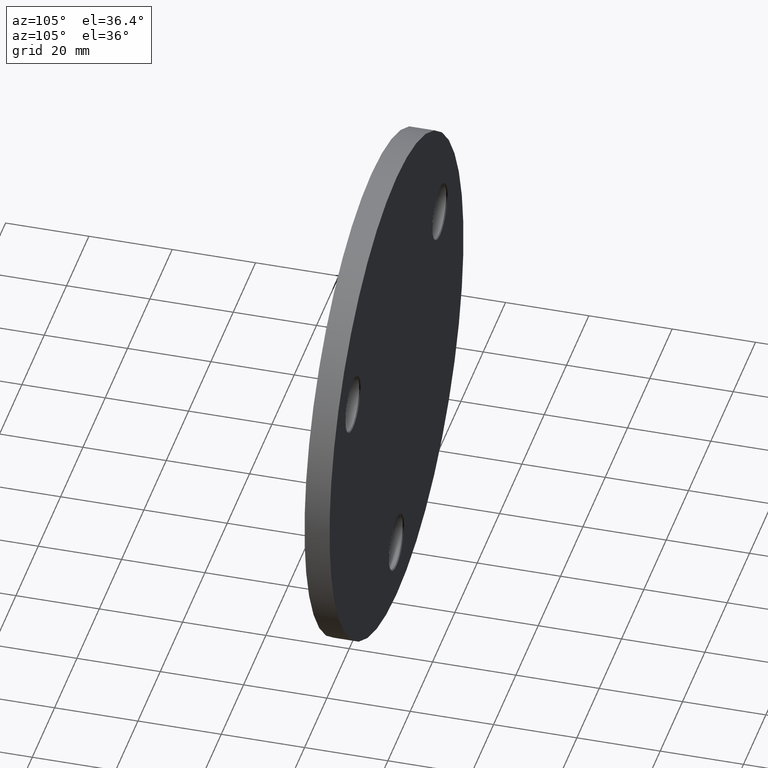
[diagram: clean part render]
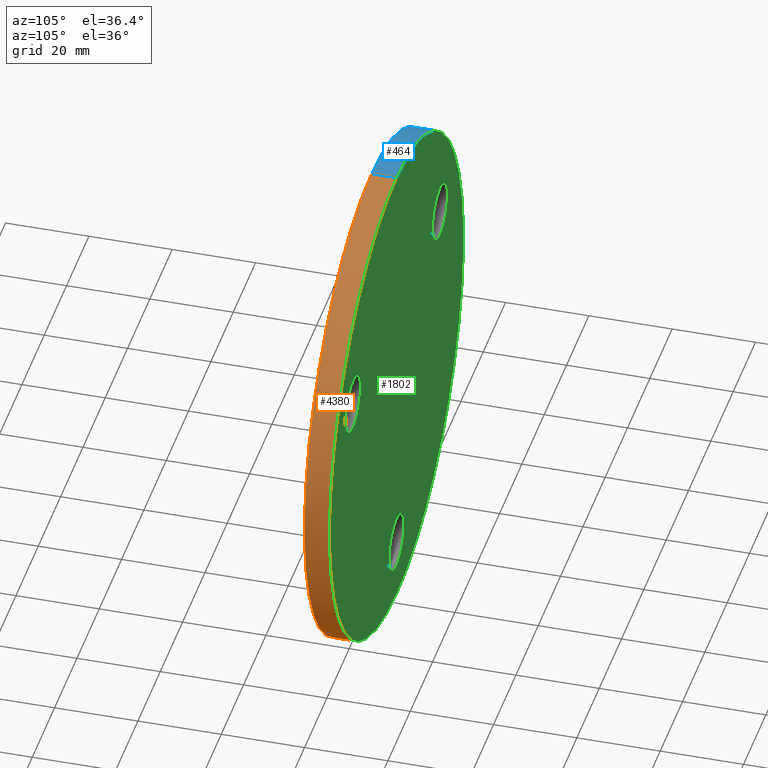
[diagram: same view with three faces highlighted in distinct colors, each labeled with its STEP entity id]
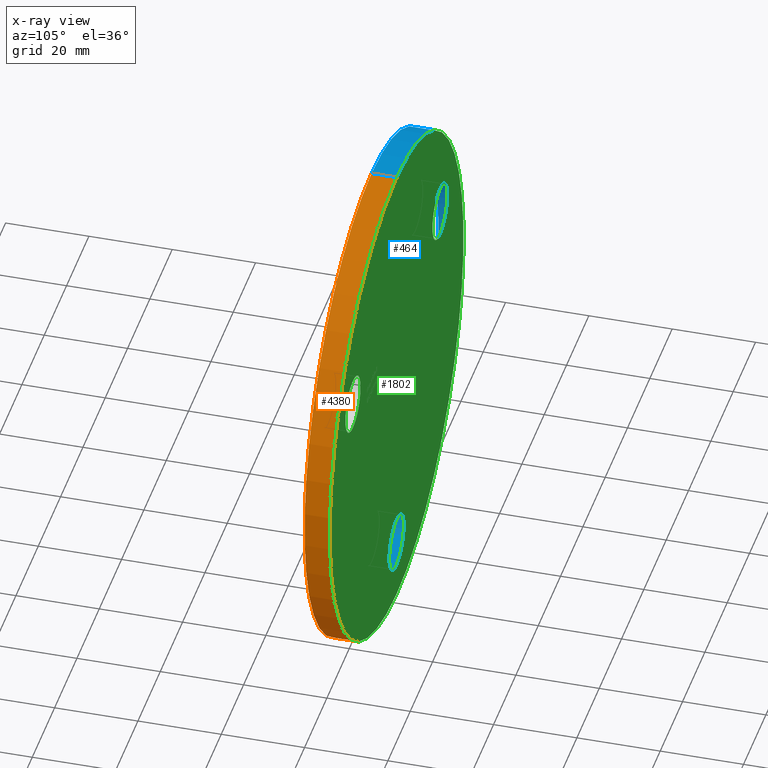
[diagram: x-ray of the same camera — body ghosted, the three highlighted faces saturated]
A machine part, auxiliary view with three faces highlighted in distinct colors.
The next image is the same camera in x-ray (body ghosted, the three faces saturated) — at least one of them is partly hidden behind the body in this view.
Their STEP definitions:

[orange] entity #4380 — the highlighted cylindrical surface (partial cylindrical patch) has radius 60 mm, axis along (-0, -1, -0).
#524 = ORIENTED_EDGE ( 'NONE', *, *, #2903, .F. ) ;
#1563 = EDGE_CURVE ( 'NONE', #5418, #5318, #6334, .T. ) ;
#2497 = CARTESIAN_POINT ( 'NONE',  ( 7.347880794884118356E-15, 6.000000000000000000, 60.00000000000000000 ) ) ;
#2500 = DIRECTION ( 'NONE',  ( 0.000000000000000000, 1.000000000000000000, 0.000000000000000000 ) ) ;
#2747 = AXIS2_PLACEMENT_3D ( 'NONE', #11037, #2500, #6249 ) ;
#2903 = EDGE_CURVE ( 'NONE', #10731, #3794, #4355, .T. ) ;
#3794 = VERTEX_POINT ( 'NONE', #11769 ) ;
#3869 = CYLINDRICAL_SURFACE ( 'NONE', #10112, 60.00000000000000000 ) ;
#4352 = EDGE_LOOP ( 'NONE', ( #7799, #9446, #7222, #524 ) ) ;
#4355 = LINE ( 'NONE', #10307, #5378 ) ;
#4378 = DIRECTION ( 'NONE',  ( -0.000000000000000000, -1.000000000000000000, -0.000000000000000000 ) ) ;
#4380 = ADVANCED_FACE ( 'NONE', ( #11148 ), #3869, .T. ) ;
#5318 = VERTEX_POINT ( 'NONE', #11219 ) ;
#5378 = VECTOR ( 'NONE', #7529, 1000.000000000000000 ) ;
#5418 = VERTEX_POINT ( 'NONE', #6687 ) ;
#5913 = EDGE_CURVE ( 'NONE', #5318, #3794, #6353, .T. ) ;
#6249 = DIRECTION ( 'NONE',  ( 0.000000000000000000, 0.000000000000000000, 1.000000000000000000 ) ) ;
#6315 = DIRECTION ( 'NONE',  ( -0.000000000000000000, -1.000000000000000000, -0.000000000000000000 ) ) ;
#6334 = LINE ( 'NONE', #2497, #8713 ) ;
#6353 = CIRCLE ( 'NONE', #12162, 60.00000000000000000 ) ;
#6687 = CARTESIAN_POINT ( 'NONE',  ( 7.347880794884118356E-15, 6.000000000000000000, 60.00000000000000000 ) ) ;
#7155 = EDGE_CURVE ( 'NONE', #5418, #10731, #10204, .T. ) ;
#7222 = ORIENTED_EDGE ( 'NONE', *, *, #5913, .T. ) ;
#7378 = DIRECTION ( 'NONE',  ( 0.000000000000000000, 0.000000000000000000, 1.000000000000000000 ) ) ;
#7529 = DIRECTION ( 'NONE',  ( -0.000000000000000000, -1.000000000000000000, -0.000000000000000000 ) ) ;
#7799 = ORIENTED_EDGE ( 'NONE', *, *, #7155, .F. ) ;
#8422 = CARTESIAN_POINT ( 'NONE',  ( 0.000000000000000000, 6.000000000000000000, -60.00000000000000000 ) ) ;
#8713 = VECTOR ( 'NONE', #4378, 1000.000000000000000 ) ;
#9065 = CARTESIAN_POINT ( 'NONE',  ( 0.000000000000000000, 6.000000000000000000, 0.000000000000000000 ) ) ;
#9110 = DIRECTION ( 'NONE',  ( 0.000000000000000000, 0.000000000000000000, -1.000000000000000000 ) ) ;
#9446 = ORIENTED_EDGE ( 'NONE', *, *, #1563, .T. ) ;
#10112 = AXIS2_PLACEMENT_3D ( 'NONE', #9065, #6315, #9110 ) ;
#10204 = CIRCLE ( 'NONE', #2747, 60.00000000000000000 ) ;
#10241 = CARTESIAN_POINT ( 'NONE',  ( 0.000000000000000000, 0.000000000000000000, 0.000000000000000000 ) ) ;
#10307 = CARTESIAN_POINT ( 'NONE',  ( 0.000000000000000000, 6.000000000000000000, -60.00000000000000000 ) ) ;
#10731 = VERTEX_POINT ( 'NONE', #8422 ) ;
#11037 = CARTESIAN_POINT ( 'NONE',  ( 0.000000000000000000, 6.000000000000000000, 0.000000000000000000 ) ) ;
#11148 = FACE_OUTER_BOUND ( 'NONE', #4352, .T. ) ;
#11219 = CARTESIAN_POINT ( 'NONE',  ( 7.347880794884118356E-15, 0.000000000000000000, 60.00000000000000000 ) ) ;
#11769 = CARTESIAN_POINT ( 'NONE',  ( 0.000000000000000000, 0.000000000000000000, -60.00000000000000000 ) ) ;
#12045 = DIRECTION ( 'NONE',  ( 0.000000000000000000, 1.000000000000000000, 0.000000000000000000 ) ) ;
#12162 = AXIS2_PLACEMENT_3D ( 'NONE', #10241, #12045, #7378 ) ;

[blue] entity #464 — the highlighted cylindrical surface (partial cylindrical patch) has radius 60 mm, axis along (-0, -1, -0).
#464 = ADVANCED_FACE ( 'NONE', ( #10974 ), #8730, .T. ) ;
#1563 = EDGE_CURVE ( 'NONE', #5418, #5318, #6334, .T. ) ;
#2243 = DIRECTION ( 'NONE',  ( 0.000000000000000000, 1.000000000000000000, 0.000000000000000000 ) ) ;
#2497 = CARTESIAN_POINT ( 'NONE',  ( 7.347880794884118356E-15, 6.000000000000000000, 60.00000000000000000 ) ) ;
#2903 = EDGE_CURVE ( 'NONE', #10731, #3794, #4355, .T. ) ;
#3196 = AXIS2_PLACEMENT_3D ( 'NONE', #9480, #4617, #7819 ) ;
#3582 = DIRECTION ( 'NONE',  ( 0.000000000000000000, 1.000000000000000000, 0.000000000000000000 ) ) ;
#3794 = VERTEX_POINT ( 'NONE', #11769 ) ;
#4245 = CARTESIAN_POINT ( 'NONE',  ( 0.000000000000000000, 6.000000000000000000, 0.000000000000000000 ) ) ;
#4355 = LINE ( 'NONE', #10307, #5378 ) ;
#4378 = DIRECTION ( 'NONE',  ( -0.000000000000000000, -1.000000000000000000, -0.000000000000000000 ) ) ;
#4617 = DIRECTION ( 'NONE',  ( -0.000000000000000000, -1.000000000000000000, -0.000000000000000000 ) ) ;
#4724 = AXIS2_PLACEMENT_3D ( 'NONE', #4245, #2243, #7987 ) ;
#5116 = AXIS2_PLACEMENT_3D ( 'NONE', #6511, #3582, #5431 ) ;
#5318 = VERTEX_POINT ( 'NONE', #11219 ) ;
#5378 = VECTOR ( 'NONE', #7529, 1000.000000000000000 ) ;
#5418 = VERTEX_POINT ( 'NONE', #6687 ) ;
#5431 = DIRECTION ( 'NONE',  ( 0.000000000000000000, 0.000000000000000000, 1.000000000000000000 ) ) ;
#6334 = LINE ( 'NONE', #2497, #8713 ) ;
#6511 = CARTESIAN_POINT ( 'NONE',  ( 0.000000000000000000, 0.000000000000000000, 0.000000000000000000 ) ) ;
#6687 = CARTESIAN_POINT ( 'NONE',  ( 7.347880794884118356E-15, 6.000000000000000000, 60.00000000000000000 ) ) ;
#6721 = ORIENTED_EDGE ( 'NONE', *, *, #1563, .F. ) ;
#7338 = CIRCLE ( 'NONE', #5116, 60.00000000000000000 ) ;
#7480 = CIRCLE ( 'NONE', #4724, 60.00000000000000000 ) ;
#7529 = DIRECTION ( 'NONE',  ( -0.000000000000000000, -1.000000000000000000, -0.000000000000000000 ) ) ;
#7819 = DIRECTION ( 'NONE',  ( 0.000000000000000000, 0.000000000000000000, -1.000000000000000000 ) ) ;
#7987 = DIRECTION ( 'NONE',  ( 0.000000000000000000, 0.000000000000000000, 1.000000000000000000 ) ) ;
#8266 = ORIENTED_EDGE ( 'NONE', *, *, #10284, .T. ) ;
#8422 = CARTESIAN_POINT ( 'NONE',  ( 0.000000000000000000, 6.000000000000000000, -60.00000000000000000 ) ) ;
#8713 = VECTOR ( 'NONE', #4378, 1000.000000000000000 ) ;
#8730 = CYLINDRICAL_SURFACE ( 'NONE', #3196, 60.00000000000000000 ) ;
#8949 = ORIENTED_EDGE ( 'NONE', *, *, #2903, .T. ) ;
#9480 = CARTESIAN_POINT ( 'NONE',  ( 0.000000000000000000, 6.000000000000000000, 0.000000000000000000 ) ) ;
#9854 = ORIENTED_EDGE ( 'NONE', *, *, #10061, .F. ) ;
#10061 = EDGE_CURVE ( 'NONE', #10731, #5418, #7480, .T. ) ;
#10284 = EDGE_CURVE ( 'NONE', #3794, #5318, #7338, .T. ) ;
#10307 = CARTESIAN_POINT ( 'NONE',  ( 0.000000000000000000, 6.000000000000000000, -60.00000000000000000 ) ) ;
#10731 = VERTEX_POINT ( 'NONE', #8422 ) ;
#10822 = EDGE_LOOP ( 'NONE', ( #6721, #9854, #8949, #8266 ) ) ;
#10974 = FACE_OUTER_BOUND ( 'NONE', #10822, .T. ) ;
#11219 = CARTESIAN_POINT ( 'NONE',  ( 7.347880794884118356E-15, 0.000000000000000000, 60.00000000000000000 ) ) ;
#11769 = CARTESIAN_POINT ( 'NONE',  ( 0.000000000000000000, 0.000000000000000000, -60.00000000000000000 ) ) ;

[green] entity #1802 — the highlighted planar face has unit normal (0, 1, 0).
#221 = EDGE_LOOP ( 'NONE', ( #7449, #2288 ) ) ;
#784 = ORIENTED_EDGE ( 'NONE', *, *, #9435, .T. ) ;
#1019 = ORIENTED_EDGE ( 'NONE', *, *, #3875, .T. ) ;
#1084 = ORIENTED_EDGE ( 'NONE', *, *, #7919, .T. ) ;
#1209 = DIRECTION ( 'NONE',  ( -0.000000000000000000, -1.000000000000000000, -0.000000000000000000 ) ) ;
#1602 = VERTEX_POINT ( 'NONE', #9197 ) ;
#1653 = CIRCLE ( 'NONE', #9636, 6.750000000000037303 ) ;
#1658 = CARTESIAN_POINT ( 'NONE',  ( 38.97114317029975439, 6.000000000000000000, 15.74999999999995914 ) ) ;
#1738 = DIRECTION ( 'NONE',  ( 0.000000000000000000, 0.000000000000000000, 1.000000000000000000 ) ) ;
#1802 = ADVANCED_FACE ( 'NONE', ( #5434, #11382, #3820, #2941 ), #1931, .T. ) ;
#1884 = CIRCLE ( 'NONE', #4559, 6.750000000000033751 ) ;
#1931 = PLANE ( 'NONE',  #6833 ) ;
#2132 = EDGE_CURVE ( 'NONE', #5989, #10085, #8560, .T. ) ;
#2243 = DIRECTION ( 'NONE',  ( 0.000000000000000000, 1.000000000000000000, 0.000000000000000000 ) ) ;
#2288 = ORIENTED_EDGE ( 'NONE', *, *, #6100, .T. ) ;
#2400 = CARTESIAN_POINT ( 'NONE',  ( 38.97114317029975439, 6.000000000000000000, 29.25000000000003197 ) ) ;
#2410 = AXIS2_PLACEMENT_3D ( 'NONE', #4730, #3939, #12268 ) ;
#2500 = DIRECTION ( 'NONE',  ( 0.000000000000000000, 1.000000000000000000, 0.000000000000000000 ) ) ;
#2747 = AXIS2_PLACEMENT_3D ( 'NONE', #11037, #2500, #6249 ) ;
#2941 = FACE_OUTER_BOUND ( 'NONE', #6604, .T. ) ;
#3359 = ORIENTED_EDGE ( 'NONE', *, *, #10061, .T. ) ;
#3498 = CARTESIAN_POINT ( 'NONE',  ( -38.97114317029973307, 6.000000000000000000, 22.50000000000002132 ) ) ;
#3580 = EDGE_LOOP ( 'NONE', ( #8950, #1019 ) ) ;
#3820 = FACE_BOUND ( 'NONE', #221, .T. ) ;
#3875 = EDGE_CURVE ( 'NONE', #10578, #6777, #9971, .T. ) ;
#3939 = DIRECTION ( 'NONE',  ( -0.000000000000000000, -1.000000000000000000, -0.000000000000000000 ) ) ;
#3997 = AXIS2_PLACEMENT_3D ( 'NONE', #10575, #1209, #5966 ) ;
#4134 = DIRECTION ( 'NONE',  ( 0.000000000000000000, 0.000000000000000000, 1.000000000000000000 ) ) ;
#4245 = CARTESIAN_POINT ( 'NONE',  ( 0.000000000000000000, 6.000000000000000000, 0.000000000000000000 ) ) ;
#4435 = DIRECTION ( 'NONE',  ( -0.000000000000000000, -1.000000000000000000, -0.000000000000000000 ) ) ;
#4559 = AXIS2_PLACEMENT_3D ( 'NONE', #3498, #11093, #9217 ) ;
#4724 = AXIS2_PLACEMENT_3D ( 'NONE', #4245, #2243, #7987 ) ;
#4730 = CARTESIAN_POINT ( 'NONE',  ( 0.000000000000000000, 6.000000000000000000, -45.00000000000000000 ) ) ;
#4952 = DIRECTION ( 'NONE',  ( -0.000000000000000000, -1.000000000000000000, -0.000000000000000000 ) ) ;
#5001 = VERTEX_POINT ( 'NONE', #11343 ) ;
#5418 = VERTEX_POINT ( 'NONE', #6687 ) ;
#5434 = FACE_BOUND ( 'NONE', #3580, .T. ) ;
#5862 = EDGE_CURVE ( 'NONE', #6777, #10578, #1653, .T. ) ;
#5966 = DIRECTION ( 'NONE',  ( 0.000000000000000000, 0.000000000000000000, 1.000000000000000000 ) ) ;
#5989 = VERTEX_POINT ( 'NONE', #8212 ) ;
#6100 = EDGE_CURVE ( 'NONE', #10085, #5989, #6787, .T. ) ;
#6249 = DIRECTION ( 'NONE',  ( 0.000000000000000000, 0.000000000000000000, 1.000000000000000000 ) ) ;
#6406 = ORIENTED_EDGE ( 'NONE', *, *, #7155, .T. ) ;
#6604 = EDGE_LOOP ( 'NONE', ( #3359, #6406 ) ) ;
#6687 = CARTESIAN_POINT ( 'NONE',  ( 7.347880794884118356E-15, 6.000000000000000000, 60.00000000000000000 ) ) ;
#6777 = VERTEX_POINT ( 'NONE', #2400 ) ;
#6787 = CIRCLE ( 'NONE', #7262, 6.749999999999992006 ) ;
#6833 = AXIS2_PLACEMENT_3D ( 'NONE', #8540, #8661, #9617 ) ;
#7155 = EDGE_CURVE ( 'NONE', #5418, #10731, #10204, .T. ) ;
#7262 = AXIS2_PLACEMENT_3D ( 'NONE', #9571, #4952, #8692 ) ;
#7449 = ORIENTED_EDGE ( 'NONE', *, *, #2132, .T. ) ;
#7480 = CIRCLE ( 'NONE', #4724, 60.00000000000000000 ) ;
#7848 = EDGE_LOOP ( 'NONE', ( #1084, #784 ) ) ;
#7919 = EDGE_CURVE ( 'NONE', #1602, #5001, #9896, .T. ) ;
#7966 = DIRECTION ( 'NONE',  ( -0.000000000000000000, -1.000000000000000000, -0.000000000000000000 ) ) ;
#7987 = DIRECTION ( 'NONE',  ( 0.000000000000000000, 0.000000000000000000, 1.000000000000000000 ) ) ;
#8212 = CARTESIAN_POINT ( 'NONE',  ( 0.000000000000000000, 6.000000000000000000, -38.25000000000000711 ) ) ;
#8422 = CARTESIAN_POINT ( 'NONE',  ( 0.000000000000000000, 6.000000000000000000, -60.00000000000000000 ) ) ;
#8540 = CARTESIAN_POINT ( 'NONE',  ( 0.000000000000000000, 6.000000000000000000, 0.000000000000000000 ) ) ;
#8560 = CIRCLE ( 'NONE', #2410, 6.749999999999992006 ) ;
#8661 = DIRECTION ( 'NONE',  ( 0.000000000000000000, 1.000000000000000000, 0.000000000000000000 ) ) ;
#8692 = DIRECTION ( 'NONE',  ( 0.000000000000000000, 0.000000000000000000, 1.000000000000000000 ) ) ;
#8950 = ORIENTED_EDGE ( 'NONE', *, *, #5862, .T. ) ;
#9197 = CARTESIAN_POINT ( 'NONE',  ( -38.97114317029973307, 6.000000000000000000, 29.25000000000005329 ) ) ;
#9217 = DIRECTION ( 'NONE',  ( 0.000000000000000000, 0.000000000000000000, 1.000000000000000000 ) ) ;
#9435 = EDGE_CURVE ( 'NONE', #5001, #1602, #1884, .T. ) ;
#9571 = CARTESIAN_POINT ( 'NONE',  ( 0.000000000000000000, 6.000000000000000000, -45.00000000000000000 ) ) ;
#9617 = DIRECTION ( 'NONE',  ( 0.000000000000000000, -0.000000000000000000, 1.000000000000000000 ) ) ;
#9636 = AXIS2_PLACEMENT_3D ( 'NONE', #11089, #4435, #1738 ) ;
#9818 = CARTESIAN_POINT ( 'NONE',  ( 38.97114317029975439, 6.000000000000000000, 22.49999999999999645 ) ) ;
#9896 = CIRCLE ( 'NONE', #3997, 6.750000000000033751 ) ;
#9970 = CARTESIAN_POINT ( 'NONE',  ( 8.266365894244624473E-16, 6.000000000000000000, -51.74999999999999289 ) ) ;
#9971 = CIRCLE ( 'NONE', #11220, 6.750000000000037303 ) ;
#10061 = EDGE_CURVE ( 'NONE', #10731, #5418, #7480, .T. ) ;
#10085 = VERTEX_POINT ( 'NONE', #9970 ) ;
#10204 = CIRCLE ( 'NONE', #2747, 60.00000000000000000 ) ;
#10575 = CARTESIAN_POINT ( 'NONE',  ( -38.97114317029973307, 6.000000000000000000, 22.50000000000002132 ) ) ;
#10578 = VERTEX_POINT ( 'NONE', #1658 ) ;
#10731 = VERTEX_POINT ( 'NONE', #8422 ) ;
#11037 = CARTESIAN_POINT ( 'NONE',  ( 0.000000000000000000, 6.000000000000000000, 0.000000000000000000 ) ) ;
#11089 = CARTESIAN_POINT ( 'NONE',  ( 38.97114317029975439, 6.000000000000000000, 22.49999999999999645 ) ) ;
#11093 = DIRECTION ( 'NONE',  ( -0.000000000000000000, -1.000000000000000000, -0.000000000000000000 ) ) ;
#11220 = AXIS2_PLACEMENT_3D ( 'NONE', #9818, #7966, #4134 ) ;
#11343 = CARTESIAN_POINT ( 'NONE',  ( -38.97114317029973307, 6.000000000000000000, 15.74999999999998579 ) ) ;
#11382 = FACE_BOUND ( 'NONE', #7848, .T. ) ;
#12268 = DIRECTION ( 'NONE',  ( 0.000000000000000000, 0.000000000000000000, 1.000000000000000000 ) ) ;